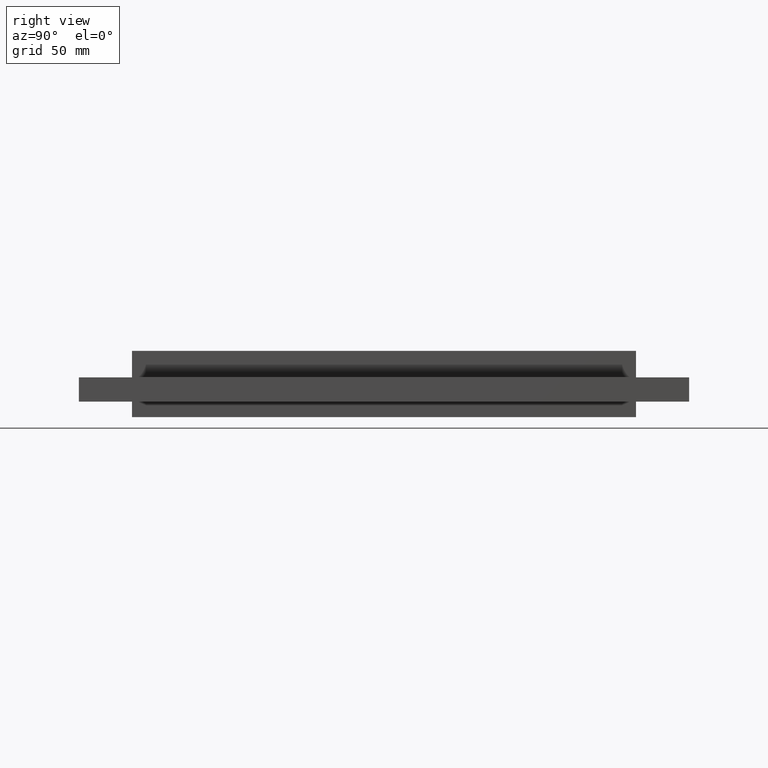
[diagram: clean part render]
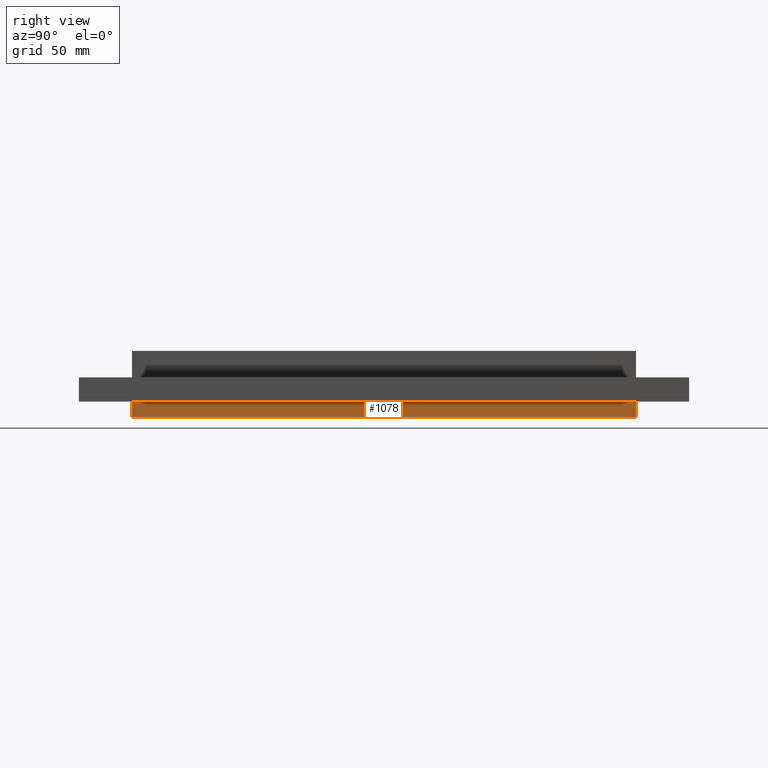
[diagram: same view with one face highlighted and labeled with its STEP entity id]
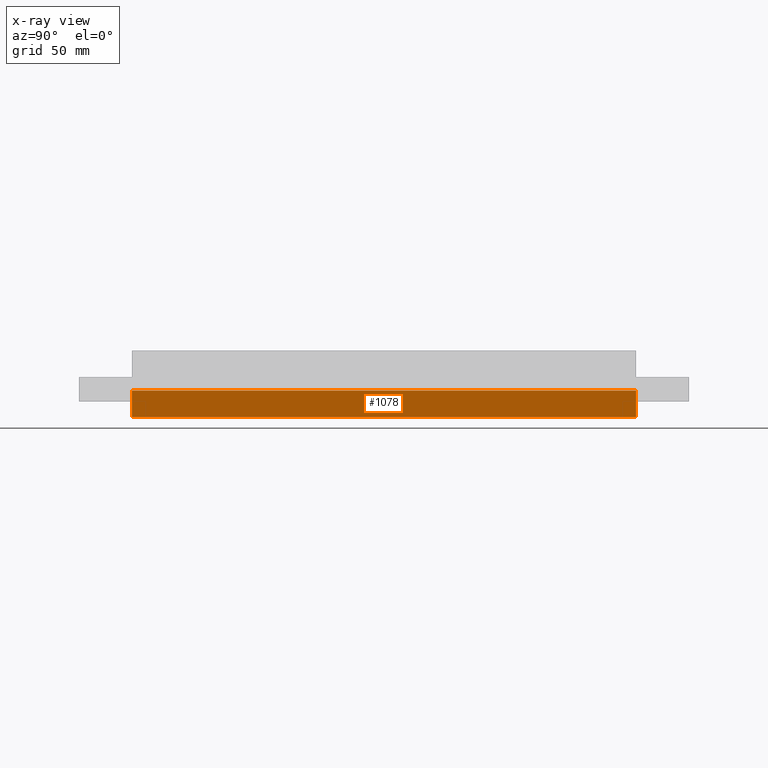
[diagram: x-ray of the same camera — body ghosted, the highlighted face saturated]
A machine part, right view. The second image highlights one B-rep face of the part: STEP entity #1078.
The next image is the same camera in x-ray: the body ghosted, the highlighted face saturated — about 0% of this face is hidden behind the body in this view.
In plain terms, the highlighted planar face has unit normal (1, 0, 0).
Its self-contained STEP definition (entity closure, byte-faithful):
#92=PLANE('',#1173);
#132=FACE_OUTER_BOUND('',#186,.T.);
#186=EDGE_LOOP('',(#811,#812,#813,#814));
#285=LINE('',#1615,#381);
#300=LINE('',#1648,#396);
#301=LINE('',#1649,#397);
#302=LINE('',#1650,#398);
#381=VECTOR('',#1320,10.);
#396=VECTOR('',#1343,10.);
#397=VECTOR('',#1344,10.);
#398=VECTOR('',#1345,10.);
#535=VERTEX_POINT('',#1613);
#536=VERTEX_POINT('',#1614);
#549=VERTEX_POINT('',#1646);
#550=VERTEX_POINT('',#1647);
#641=EDGE_CURVE('',#535,#536,#285,.T.);
#656=EDGE_CURVE('',#549,#550,#300,.T.);
#657=EDGE_CURVE('',#550,#536,#301,.T.);
#658=EDGE_CURVE('',#549,#535,#302,.T.);
#811=ORIENTED_EDGE('',*,*,#656,.T.);
#812=ORIENTED_EDGE('',*,*,#657,.T.);
#813=ORIENTED_EDGE('',*,*,#641,.F.);
#814=ORIENTED_EDGE('',*,*,#658,.F.);
#1078=ADVANCED_FACE('',(#132),#92,.T.);
#1173=AXIS2_PLACEMENT_3D('',#1645,#1341,#1342);
#1320=DIRECTION('',(0.,0.,-1.));
#1341=DIRECTION('center_axis',(1.,0.,0.));
#1342=DIRECTION('ref_axis',(0.,0.,-1.));
#1343=DIRECTION('',(0.,0.,-1.));
#1344=DIRECTION('',(0.,1.,0.));
#1345=DIRECTION('',(0.,1.,0.));
#1613=CARTESIAN_POINT('',(65.9999999999999,114.,-3.));
#1614=CARTESIAN_POINT('',(65.9999999999999,114.,-15.));
#1615=CARTESIAN_POINT('',(65.9999999999999,114.,-1.5));
#1645=CARTESIAN_POINT('Origin',(65.9999999999999,-114.,-3.));
#1646=CARTESIAN_POINT('',(65.9999999999999,-114.,-3.));
#1647=CARTESIAN_POINT('',(65.9999999999999,-114.,-15.));
#1648=CARTESIAN_POINT('',(65.9999999999999,-114.,-1.5));
#1649=CARTESIAN_POINT('',(65.9999999999999,-114.,-15.));
#1650=CARTESIAN_POINT('',(65.9999999999999,-114.,-3.));